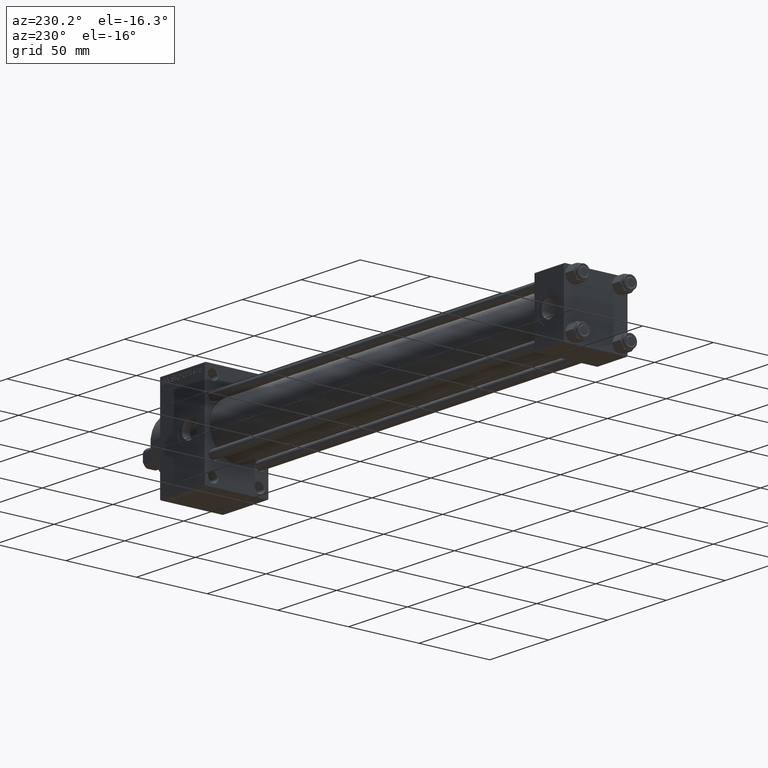
[diagram: clean part render]
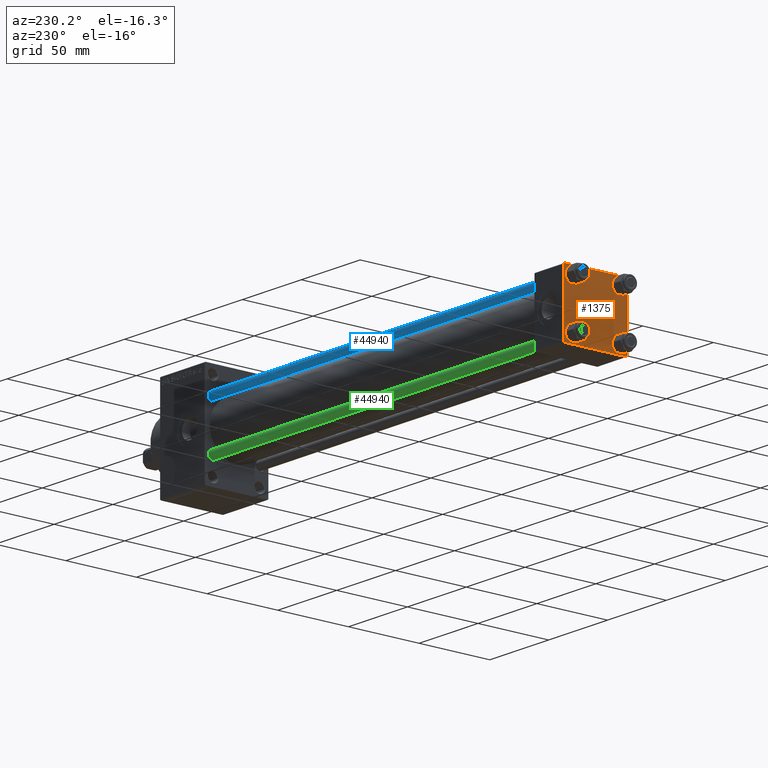
[diagram: same view with three faces highlighted in distinct colors, each labeled with its STEP entity id]
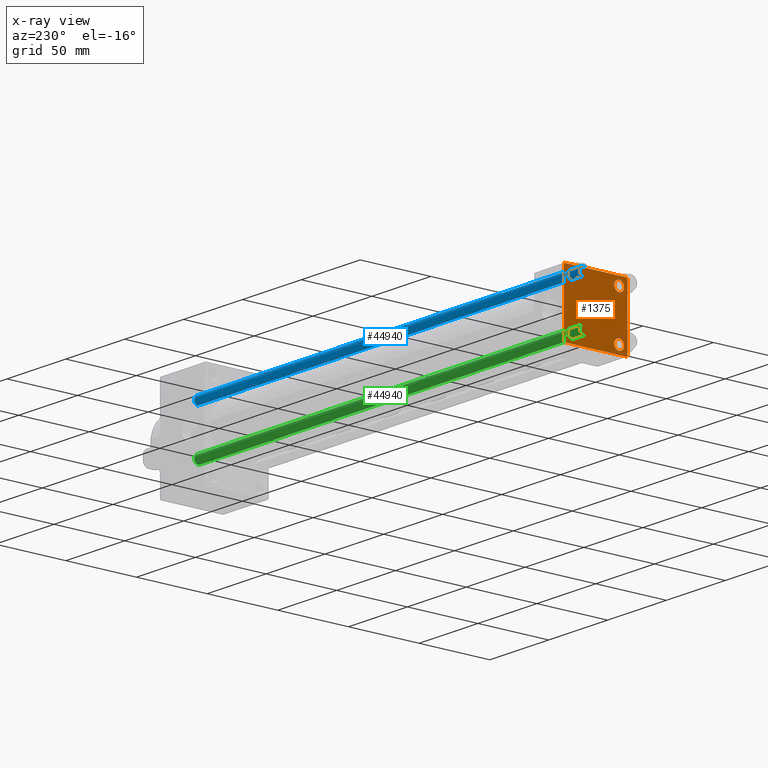
[diagram: x-ray of the same camera — body ghosted, the three highlighted faces saturated]
A machine part, auxiliary view with three faces highlighted in distinct colors.
The next image is the same camera in x-ray (body ghosted, the three faces saturated) — at least one of them is partly hidden behind the body in this view.
Their STEP definitions:

[orange] entity #1375 — the highlighted planar face has unit normal (-1, 0, 0).
#231 = DIRECTION ( 'NONE',  ( -1.000000000000000000, 0.000000000000000000, -0.000000000000000000 ) ) ;
#478 = FACE_OUTER_BOUND ( 'NONE', #25983, .T. ) ;
#729 = ORIENTED_EDGE ( 'NONE', *, *, #39065, .T. ) ;
#1077 = CARTESIAN_POINT ( 'NONE',  ( -0.000000000000000000, -22.24999999999984013, 22.25000000000015277 ) ) ;
#1285 = DIRECTION ( 'NONE',  ( 0.000000000000000000, 0.000000000000000000, 1.000000000000000000 ) ) ;
#1375 = ADVANCED_FACE ( 'NONE', ( #18181, #18914, #46340, #7697, #478 ), #30863, .T. ) ;
#1744 = DIRECTION ( 'NONE',  ( 0.000000000000000000, 0.7071067811865474617, -0.7071067811865474617 ) ) ;
#1978 = EDGE_CURVE ( 'NONE', #17985, #47884, #37011, .T. ) ;
#2150 = AXIS2_PLACEMENT_3D ( 'NONE', #6692, #2955, #29365 ) ;
#2280 = LINE ( 'NONE', #13246, #43073 ) ;
#2585 = CARTESIAN_POINT ( 'NONE',  ( 0.000000000000000000, -22.50000000000000000, -21.99999999999997158 ) ) ;
#2785 = VECTOR ( 'NONE', #8490, 1000.000000000000000 ) ;
#2955 = DIRECTION ( 'NONE',  ( 1.000000000000000000, -0.000000000000000000, 0.000000000000000000 ) ) ;
#3191 = VERTEX_POINT ( 'NONE', #7538 ) ;
#3814 = EDGE_LOOP ( 'NONE', ( #9095, #35872 ) ) ;
#4010 = VERTEX_POINT ( 'NONE', #37163 ) ;
#4329 = LINE ( 'NONE', #23018, #47836 ) ;
#5004 = LINE ( 'NONE', #41912, #2785 ) ;
#5475 = CARTESIAN_POINT ( 'NONE',  ( 0.000000000000000000, 16.59999999999999787, -16.60000000000000497 ) ) ;
#5862 = DIRECTION ( 'NONE',  ( 0.000000000000000000, -0.7071067811865426878, 0.7071067811865524577 ) ) ;
#6302 = LINE ( 'NONE', #14517, #34910 ) ;
#6692 = CARTESIAN_POINT ( 'NONE',  ( 0.000000000000000000, 16.59999999999999787, 16.60000000000000497 ) ) ;
#7066 = CARTESIAN_POINT ( 'NONE',  ( 0.000000000000000000, 16.59999999999999787, 20.10000000000000142 ) ) ;
#7538 = CARTESIAN_POINT ( 'NONE',  ( 0.000000000000000000, 21.99999999999999289, -22.49999999999999645 ) ) ;
#7697 = FACE_BOUND ( 'NONE', #22319, .T. ) ;
#8049 = EDGE_CURVE ( 'NONE', #3191, #17985, #36626, .T. ) ;
#8490 = DIRECTION ( 'NONE',  ( -0.000000000000000000, -0.7071067811865426878, -0.7071067811865524577 ) ) ;
#8592 = CARTESIAN_POINT ( 'NONE',  ( 0.000000000000000000, 16.59999999999999787, -16.60000000000000497 ) ) ;
#8904 = ORIENTED_EDGE ( 'NONE', *, *, #29505, .T. ) ;
#9095 = ORIENTED_EDGE ( 'NONE', *, *, #33384, .T. ) ;
#9166 = ORIENTED_EDGE ( 'NONE', *, *, #33199, .T. ) ;
#9504 = DIRECTION ( 'NONE',  ( -0.000000000000000000, 0.7071067811865525687, 0.7071067811865425767 ) ) ;
#10005 = DIRECTION ( 'NONE',  ( 1.000000000000000000, -0.000000000000000000, 0.000000000000000000 ) ) ;
#10859 = VERTEX_POINT ( 'NONE', #32764 ) ;
#11677 = VERTEX_POINT ( 'NONE', #45499 ) ;
#12041 = DIRECTION ( 'NONE',  ( 1.000000000000000000, -0.000000000000000000, 0.000000000000000000 ) ) ;
#12171 = VERTEX_POINT ( 'NONE', #17706 ) ;
#12279 = VECTOR ( 'NONE', #33130, 1000.000000000000000 ) ;
#13076 = ORIENTED_EDGE ( 'NONE', *, *, #43118, .T. ) ;
#13246 = CARTESIAN_POINT ( 'NONE',  ( 0.000000000000000000, -22.50000000000000000, 22.50000000000000000 ) ) ;
#13627 = CIRCLE ( 'NONE', #41520, 3.499999999999996003 ) ;
#13846 = AXIS2_PLACEMENT_3D ( 'NONE', #39266, #38774, #15606 ) ;
#14186 = EDGE_LOOP ( 'NONE', ( #17974, #21123 ) ) ;
#14200 = CARTESIAN_POINT ( 'NONE',  ( 0.000000000000000000, -16.59999999999999076, 13.10000000000001030 ) ) ;
#14517 = CARTESIAN_POINT ( 'NONE',  ( 0.000000000000000000, 22.50000000000000000, 22.50000000000000355 ) ) ;
#14675 = CARTESIAN_POINT ( 'NONE',  ( 0.000000000000000000, 22.50000000000000000, -21.99999999999996803 ) ) ;
#15138 = AXIS2_PLACEMENT_3D ( 'NONE', #47637, #32911, #43406 ) ;
#15331 = CARTESIAN_POINT ( 'NONE',  ( 0.000000000000000000, -21.99999999999997868, 22.50000000000000000 ) ) ;
#15606 = DIRECTION ( 'NONE',  ( 0.000000000000000000, 0.000000000000000000, 1.000000000000000000 ) ) ;
#16295 = EDGE_CURVE ( 'NONE', #36336, #4010, #33240, .T. ) ;
#16495 = CIRCLE ( 'NONE', #44351, 3.499999999999996003 ) ;
#16497 = VERTEX_POINT ( 'NONE', #21972 ) ;
#16513 = CARTESIAN_POINT ( 'NONE',  ( 0.000000000000000000, -16.59999999999999076, -16.60000000000000853 ) ) ;
#16798 = ORIENTED_EDGE ( 'NONE', *, *, #42503, .T. ) ;
#17706 = CARTESIAN_POINT ( 'NONE',  ( 0.000000000000000000, -16.59999999999999076, 20.10000000000000853 ) ) ;
#17974 = ORIENTED_EDGE ( 'NONE', *, *, #21524, .T. ) ;
#17985 = VERTEX_POINT ( 'NONE', #38038 ) ;
#18181 = FACE_BOUND ( 'NONE', #14186, .T. ) ;
#18914 = FACE_BOUND ( 'NONE', #3814, .T. ) ;
#19699 = EDGE_LOOP ( 'NONE', ( #13076, #38682 ) ) ;
#20381 = VERTEX_POINT ( 'NONE', #15331 ) ;
#20496 = DIRECTION ( 'NONE',  ( 0.000000000000000000, 0.000000000000000000, 1.000000000000000000 ) ) ;
#20498 = LINE ( 'NONE', #1077, #43951 ) ;
#20532 = ORIENTED_EDGE ( 'NONE', *, *, #45507, .T. ) ;
#21123 = ORIENTED_EDGE ( 'NONE', *, *, #34720, .T. ) ;
#21524 = EDGE_CURVE ( 'NONE', #12171, #33962, #35834, .T. ) ;
#21972 = CARTESIAN_POINT ( 'NONE',  ( 0.000000000000000000, 16.59999999999999787, 13.10000000000000675 ) ) ;
#22319 = EDGE_LOOP ( 'NONE', ( #16798, #27143 ) ) ;
#22429 = AXIS2_PLACEMENT_3D ( 'NONE', #34112, #231, #30136 ) ;
#23018 = CARTESIAN_POINT ( 'NONE',  ( 0.000000000000000000, 22.50000000000000000, 22.50000000000000355 ) ) ;
#23107 = ORIENTED_EDGE ( 'NONE', *, *, #23921, .F. ) ;
#23507 = DIRECTION ( 'NONE',  ( 0.000000000000000000, -1.000000000000000000, -7.709882115452476934E-17 ) ) ;
#23921 = EDGE_CURVE ( 'NONE', #32278, #47884, #2280, .T. ) ;
#24108 = VERTEX_POINT ( 'NONE', #37599 ) ;
#24173 = LINE ( 'NONE', #35881, #27389 ) ;
#24709 = DIRECTION ( 'NONE',  ( 0.000000000000000000, 0.000000000000000000, 1.000000000000000000 ) ) ;
#24911 = EDGE_CURVE ( 'NONE', #11677, #24108, #13627, .T. ) ;
#25983 = EDGE_LOOP ( 'NONE', ( #20532, #729, #46323, #30534, #23107, #8904, #44610, #9166 ) ) ;
#26004 = EDGE_CURVE ( 'NONE', #44945, #20381, #4329, .T. ) ;
#26431 = AXIS2_PLACEMENT_3D ( 'NONE', #37178, #48900, #28954 ) ;
#27143 = ORIENTED_EDGE ( 'NONE', *, *, #29703, .T. ) ;
#27389 = VECTOR ( 'NONE', #1744, 1000.000000000000114 ) ;
#27654 = DIRECTION ( 'NONE',  ( 0.000000000000000000, 0.000000000000000000, 1.000000000000000000 ) ) ;
#28461 = AXIS2_PLACEMENT_3D ( 'NONE', #16513, #12041, #20496 ) ;
#28819 = CIRCLE ( 'NONE', #26431, 3.499999999999996003 ) ;
#28954 = DIRECTION ( 'NONE',  ( 0.000000000000000000, 0.000000000000000000, 1.000000000000000000 ) ) ;
#29365 = DIRECTION ( 'NONE',  ( 0.000000000000000000, 0.000000000000000000, 1.000000000000000000 ) ) ;
#29505 = EDGE_CURVE ( 'NONE', #32278, #20381, #20498, .T. ) ;
#29703 = EDGE_CURVE ( 'NONE', #16497, #35555, #28819, .T. ) ;
#30136 = DIRECTION ( 'NONE',  ( -0.000000000000000000, 0.000000000000000000, 1.000000000000000000 ) ) ;
#30534 = ORIENTED_EDGE ( 'NONE', *, *, #1978, .T. ) ;
#30559 = CIRCLE ( 'NONE', #13846, 3.499999999999996003 ) ;
#30863 = PLANE ( 'NONE',  #22429 ) ;
#32278 = VERTEX_POINT ( 'NONE', #45840 ) ;
#32451 = DIRECTION ( 'NONE',  ( 0.000000000000000000, 0.000000000000000000, -1.000000000000000000 ) ) ;
#32764 = CARTESIAN_POINT ( 'NONE',  ( 0.000000000000000000, 22.50000000000000000, 21.99999999999999645 ) ) ;
#32911 = DIRECTION ( 'NONE',  ( 1.000000000000000000, -0.000000000000000000, 0.000000000000000000 ) ) ;
#33130 = DIRECTION ( 'NONE',  ( 0.000000000000000000, -1.000000000000000000, -2.312964634635742957E-16 ) ) ;
#33199 = EDGE_CURVE ( 'NONE', #44945, #10859, #24173, .T. ) ;
#33204 = CIRCLE ( 'NONE', #2150, 3.499999999999996003 ) ;
#33240 = CIRCLE ( 'NONE', #28461, 3.499999999999996003 ) ;
#33384 = EDGE_CURVE ( 'NONE', #4010, #36336, #30559, .T. ) ;
#33962 = VERTEX_POINT ( 'NONE', #14200 ) ;
#34112 = CARTESIAN_POINT ( 'NONE',  ( 0.000000000000000000, 0.000000000000000000, 0.000000000000000000 ) ) ;
#34428 = DIRECTION ( 'NONE',  ( 1.000000000000000000, -0.000000000000000000, 0.000000000000000000 ) ) ;
#34720 = EDGE_CURVE ( 'NONE', #33962, #12171, #41759, .T. ) ;
#34910 = VECTOR ( 'NONE', #32451, 1000.000000000000000 ) ;
#35555 = VERTEX_POINT ( 'NONE', #7066 ) ;
#35834 = CIRCLE ( 'NONE', #15138, 3.499999999999996003 ) ;
#35872 = ORIENTED_EDGE ( 'NONE', *, *, #16295, .T. ) ;
#35881 = CARTESIAN_POINT ( 'NONE',  ( 0.000000000000000000, 22.24999999999999645, 22.24999999999999645 ) ) ;
#35933 = VECTOR ( 'NONE', #5862, 1000.000000000000000 ) ;
#36336 = VERTEX_POINT ( 'NONE', #38008 ) ;
#36421 = DIRECTION ( 'NONE',  ( 0.000000000000000000, 0.000000000000000000, -1.000000000000000000 ) ) ;
#36626 = LINE ( 'NONE', #40867, #12279 ) ;
#36825 = CARTESIAN_POINT ( 'NONE',  ( 0.000000000000000000, 21.99999999999999289, 22.50000000000000355 ) ) ;
#37011 = LINE ( 'NONE', #44754, #35933 ) ;
#37163 = CARTESIAN_POINT ( 'NONE',  ( 0.000000000000000000, -16.59999999999999076, -13.10000000000001030 ) ) ;
#37178 = CARTESIAN_POINT ( 'NONE',  ( 0.000000000000000000, 16.59999999999999787, 16.60000000000000497 ) ) ;
#37599 = CARTESIAN_POINT ( 'NONE',  ( 0.000000000000000000, 16.59999999999999787, -13.10000000000000675 ) ) ;
#38008 = CARTESIAN_POINT ( 'NONE',  ( 0.000000000000000000, -16.59999999999999076, -20.10000000000000497 ) ) ;
#38038 = CARTESIAN_POINT ( 'NONE',  ( 0.000000000000000000, -21.99999999999997158, -22.50000000000000711 ) ) ;
#38575 = AXIS2_PLACEMENT_3D ( 'NONE', #42410, #34428, #1285 ) ;
#38682 = ORIENTED_EDGE ( 'NONE', *, *, #24911, .T. ) ;
#38774 = DIRECTION ( 'NONE',  ( 1.000000000000000000, -0.000000000000000000, 0.000000000000000000 ) ) ;
#39065 = EDGE_CURVE ( 'NONE', #48576, #3191, #5004, .T. ) ;
#39266 = CARTESIAN_POINT ( 'NONE',  ( 0.000000000000000000, -16.59999999999999076, -16.60000000000000853 ) ) ;
#40867 = CARTESIAN_POINT ( 'NONE',  ( 0.000000000000000000, 22.50000000000000000, -22.49999999999999645 ) ) ;
#41520 = AXIS2_PLACEMENT_3D ( 'NONE', #5475, #46875, #27654 ) ;
#41759 = CIRCLE ( 'NONE', #38575, 3.499999999999996003 ) ;
#41912 = CARTESIAN_POINT ( 'NONE',  ( 0.000000000000000000, 22.25000000000014566, -22.24999999999984013 ) ) ;
#42410 = CARTESIAN_POINT ( 'NONE',  ( 0.000000000000000000, -16.59999999999999076, 16.60000000000000853 ) ) ;
#42503 = EDGE_CURVE ( 'NONE', #35555, #16497, #33204, .T. ) ;
#43073 = VECTOR ( 'NONE', #36421, 1000.000000000000000 ) ;
#43118 = EDGE_CURVE ( 'NONE', #24108, #11677, #16495, .T. ) ;
#43406 = DIRECTION ( 'NONE',  ( 0.000000000000000000, 0.000000000000000000, 1.000000000000000000 ) ) ;
#43951 = VECTOR ( 'NONE', #9504, 999.9999999999998863 ) ;
#44351 = AXIS2_PLACEMENT_3D ( 'NONE', #8592, #10005, #24709 ) ;
#44610 = ORIENTED_EDGE ( 'NONE', *, *, #26004, .F. ) ;
#44754 = CARTESIAN_POINT ( 'NONE',  ( 0.000000000000000000, -22.25000000000014566, -22.24999999999984013 ) ) ;
#44945 = VERTEX_POINT ( 'NONE', #36825 ) ;
#45499 = CARTESIAN_POINT ( 'NONE',  ( 0.000000000000000000, 16.59999999999999787, -20.10000000000000142 ) ) ;
#45507 = EDGE_CURVE ( 'NONE', #10859, #48576, #6302, .T. ) ;
#45840 = CARTESIAN_POINT ( 'NONE',  ( 0.000000000000000000, -22.50000000000000000, 22.00000000000000000 ) ) ;
#46323 = ORIENTED_EDGE ( 'NONE', *, *, #8049, .T. ) ;
#46340 = FACE_BOUND ( 'NONE', #19699, .T. ) ;
#46875 = DIRECTION ( 'NONE',  ( 1.000000000000000000, -0.000000000000000000, 0.000000000000000000 ) ) ;
#47637 = CARTESIAN_POINT ( 'NONE',  ( 0.000000000000000000, -16.59999999999999076, 16.60000000000000853 ) ) ;
#47836 = VECTOR ( 'NONE', #23507, 1000.000000000000000 ) ;
#47884 = VERTEX_POINT ( 'NONE', #2585 ) ;
#48576 = VERTEX_POINT ( 'NONE', #14675 ) ;
#48900 = DIRECTION ( 'NONE',  ( 1.000000000000000000, -0.000000000000000000, 0.000000000000000000 ) ) ;

[blue] entity #44940 — the highlighted cylindrical surface (edge-blend (fillet) strip) has radius 3 mm, axis along (-1, -0, 0).
#114 = VERTEX_POINT ( 'NONE', #16299 ) ;
#2787 = VECTOR ( 'NONE', #18599, 1000.000000000000000 ) ;
#5227 = LINE ( 'NONE', #28382, #16592 ) ;
#9250 = AXIS2_PLACEMENT_3D ( 'NONE', #14523, #37207, #14029 ) ;
#12913 = DIRECTION ( 'NONE',  ( -0.000000000000000000, -0.000000000000000000, 1.000000000000000000 ) ) ;
#13173 = EDGE_CURVE ( 'NONE', #26047, #114, #32306, .T. ) ;
#13691 = ORIENTED_EDGE ( 'NONE', *, *, #13173, .T. ) ;
#13890 = CARTESIAN_POINT ( 'NONE',  ( 0.000000000000000000, 0.000000000000000000, 0.5000000000000559552 ) ) ;
#14029 = DIRECTION ( 'NONE',  ( 1.000000000000000000, 0.000000000000000000, 0.000000000000000000 ) ) ;
#14523 = CARTESIAN_POINT ( 'NONE',  ( 0.000000000000000000, 0.000000000000000000, 327.5000000000000000 ) ) ;
#14861 = CARTESIAN_POINT ( 'NONE',  ( -3.000000000000000444, 0.000000000000000000, 328.0000000000000000 ) ) ;
#15295 = CARTESIAN_POINT ( 'NONE',  ( -3.000000000000000444, 0.000000000000000000, 327.5000000000000000 ) ) ;
#16299 = CARTESIAN_POINT ( 'NONE',  ( 3.000000000000000444, 3.673940397442060361E-16, 327.5000000000000000 ) ) ;
#16592 = VECTOR ( 'NONE', #21157, 1000.000000000000000 ) ;
#17140 = CIRCLE ( 'NONE', #22704, 3.000000000000000444 ) ;
#17634 = CARTESIAN_POINT ( 'NONE',  ( 0.000000000000000000, 0.000000000000000000, 328.0000000000000000 ) ) ;
#17795 = ORIENTED_EDGE ( 'NONE', *, *, #48377, .T. ) ;
#18599 = DIRECTION ( 'NONE',  ( -0.000000000000000000, -0.000000000000000000, -1.000000000000000000 ) ) ;
#21157 = DIRECTION ( 'NONE',  ( -0.000000000000000000, -0.000000000000000000, -1.000000000000000000 ) ) ;
#22704 = AXIS2_PLACEMENT_3D ( 'NONE', #13890, #12913, #47552 ) ;
#26047 = VERTEX_POINT ( 'NONE', #15295 ) ;
#26310 = LINE ( 'NONE', #14861, #2787 ) ;
#28382 = CARTESIAN_POINT ( 'NONE',  ( 3.000000000000000444, 3.673940397442060361E-16, 328.0000000000000000 ) ) ;
#29094 = FACE_OUTER_BOUND ( 'NONE', #35300, .T. ) ;
#30084 = CYLINDRICAL_SURFACE ( 'NONE', #35652, 3.000000000000000444 ) ;
#30457 = VERTEX_POINT ( 'NONE', #36317 ) ;
#32306 = CIRCLE ( 'NONE', #9250, 3.000000000000000444 ) ;
#33819 = DIRECTION ( 'NONE',  ( -1.000000000000000000, 0.000000000000000000, 0.000000000000000000 ) ) ;
#35130 = EDGE_CURVE ( 'NONE', #26047, #30457, #26310, .T. ) ;
#35300 = EDGE_LOOP ( 'NONE', ( #13691, #17795, #42544, #43284 ) ) ;
#35652 = AXIS2_PLACEMENT_3D ( 'NONE', #17634, #44312, #33819 ) ;
#36317 = CARTESIAN_POINT ( 'NONE',  ( -3.000000000000000444, 0.000000000000000000, 0.5000000000000559552 ) ) ;
#37207 = DIRECTION ( 'NONE',  ( 0.000000000000000000, 0.000000000000000000, -1.000000000000000000 ) ) ;
#40065 = EDGE_CURVE ( 'NONE', #43184, #30457, #17140, .T. ) ;
#42507 = CARTESIAN_POINT ( 'NONE',  ( 3.000000000000000444, 3.673940397442060361E-16, 0.5000000000000559552 ) ) ;
#42544 = ORIENTED_EDGE ( 'NONE', *, *, #40065, .T. ) ;
#43184 = VERTEX_POINT ( 'NONE', #42507 ) ;
#43284 = ORIENTED_EDGE ( 'NONE', *, *, #35130, .F. ) ;
#44312 = DIRECTION ( 'NONE',  ( -0.000000000000000000, -0.000000000000000000, -1.000000000000000000 ) ) ;
#44940 = ADVANCED_FACE ( 'NONE', ( #29094 ), #30084, .T. ) ;
#47552 = DIRECTION ( 'NONE',  ( 1.000000000000000000, 0.000000000000000000, 0.000000000000000000 ) ) ;
#48377 = EDGE_CURVE ( 'NONE', #114, #43184, #5227, .T. ) ;

[green] entity #44940 — the highlighted cylindrical surface (edge-blend (fillet) strip) has radius 3 mm, axis along (1, -0, 0).
#114 = VERTEX_POINT ( 'NONE', #16299 ) ;
#2787 = VECTOR ( 'NONE', #18599, 1000.000000000000000 ) ;
#5227 = LINE ( 'NONE', #28382, #16592 ) ;
#9250 = AXIS2_PLACEMENT_3D ( 'NONE', #14523, #37207, #14029 ) ;
#12913 = DIRECTION ( 'NONE',  ( -0.000000000000000000, -0.000000000000000000, 1.000000000000000000 ) ) ;
#13173 = EDGE_CURVE ( 'NONE', #26047, #114, #32306, .T. ) ;
#13691 = ORIENTED_EDGE ( 'NONE', *, *, #13173, .T. ) ;
#13890 = CARTESIAN_POINT ( 'NONE',  ( 0.000000000000000000, 0.000000000000000000, 0.5000000000000559552 ) ) ;
#14029 = DIRECTION ( 'NONE',  ( 1.000000000000000000, 0.000000000000000000, 0.000000000000000000 ) ) ;
#14523 = CARTESIAN_POINT ( 'NONE',  ( 0.000000000000000000, 0.000000000000000000, 327.5000000000000000 ) ) ;
#14861 = CARTESIAN_POINT ( 'NONE',  ( -3.000000000000000444, 0.000000000000000000, 328.0000000000000000 ) ) ;
#15295 = CARTESIAN_POINT ( 'NONE',  ( -3.000000000000000444, 0.000000000000000000, 327.5000000000000000 ) ) ;
#16299 = CARTESIAN_POINT ( 'NONE',  ( 3.000000000000000444, 3.673940397442060361E-16, 327.5000000000000000 ) ) ;
#16592 = VECTOR ( 'NONE', #21157, 1000.000000000000000 ) ;
#17140 = CIRCLE ( 'NONE', #22704, 3.000000000000000444 ) ;
#17634 = CARTESIAN_POINT ( 'NONE',  ( 0.000000000000000000, 0.000000000000000000, 328.0000000000000000 ) ) ;
#17795 = ORIENTED_EDGE ( 'NONE', *, *, #48377, .T. ) ;
#18599 = DIRECTION ( 'NONE',  ( -0.000000000000000000, -0.000000000000000000, -1.000000000000000000 ) ) ;
#21157 = DIRECTION ( 'NONE',  ( -0.000000000000000000, -0.000000000000000000, -1.000000000000000000 ) ) ;
#22704 = AXIS2_PLACEMENT_3D ( 'NONE', #13890, #12913, #47552 ) ;
#26047 = VERTEX_POINT ( 'NONE', #15295 ) ;
#26310 = LINE ( 'NONE', #14861, #2787 ) ;
#28382 = CARTESIAN_POINT ( 'NONE',  ( 3.000000000000000444, 3.673940397442060361E-16, 328.0000000000000000 ) ) ;
#29094 = FACE_OUTER_BOUND ( 'NONE', #35300, .T. ) ;
#30084 = CYLINDRICAL_SURFACE ( 'NONE', #35652, 3.000000000000000444 ) ;
#30457 = VERTEX_POINT ( 'NONE', #36317 ) ;
#32306 = CIRCLE ( 'NONE', #9250, 3.000000000000000444 ) ;
#33819 = DIRECTION ( 'NONE',  ( -1.000000000000000000, 0.000000000000000000, 0.000000000000000000 ) ) ;
#35130 = EDGE_CURVE ( 'NONE', #26047, #30457, #26310, .T. ) ;
#35300 = EDGE_LOOP ( 'NONE', ( #13691, #17795, #42544, #43284 ) ) ;
#35652 = AXIS2_PLACEMENT_3D ( 'NONE', #17634, #44312, #33819 ) ;
#36317 = CARTESIAN_POINT ( 'NONE',  ( -3.000000000000000444, 0.000000000000000000, 0.5000000000000559552 ) ) ;
#37207 = DIRECTION ( 'NONE',  ( 0.000000000000000000, 0.000000000000000000, -1.000000000000000000 ) ) ;
#40065 = EDGE_CURVE ( 'NONE', #43184, #30457, #17140, .T. ) ;
#42507 = CARTESIAN_POINT ( 'NONE',  ( 3.000000000000000444, 3.673940397442060361E-16, 0.5000000000000559552 ) ) ;
#42544 = ORIENTED_EDGE ( 'NONE', *, *, #40065, .T. ) ;
#43184 = VERTEX_POINT ( 'NONE', #42507 ) ;
#43284 = ORIENTED_EDGE ( 'NONE', *, *, #35130, .F. ) ;
#44312 = DIRECTION ( 'NONE',  ( -0.000000000000000000, -0.000000000000000000, -1.000000000000000000 ) ) ;
#44940 = ADVANCED_FACE ( 'NONE', ( #29094 ), #30084, .T. ) ;
#47552 = DIRECTION ( 'NONE',  ( 1.000000000000000000, 0.000000000000000000, 0.000000000000000000 ) ) ;
#48377 = EDGE_CURVE ( 'NONE', #114, #43184, #5227, .T. ) ;